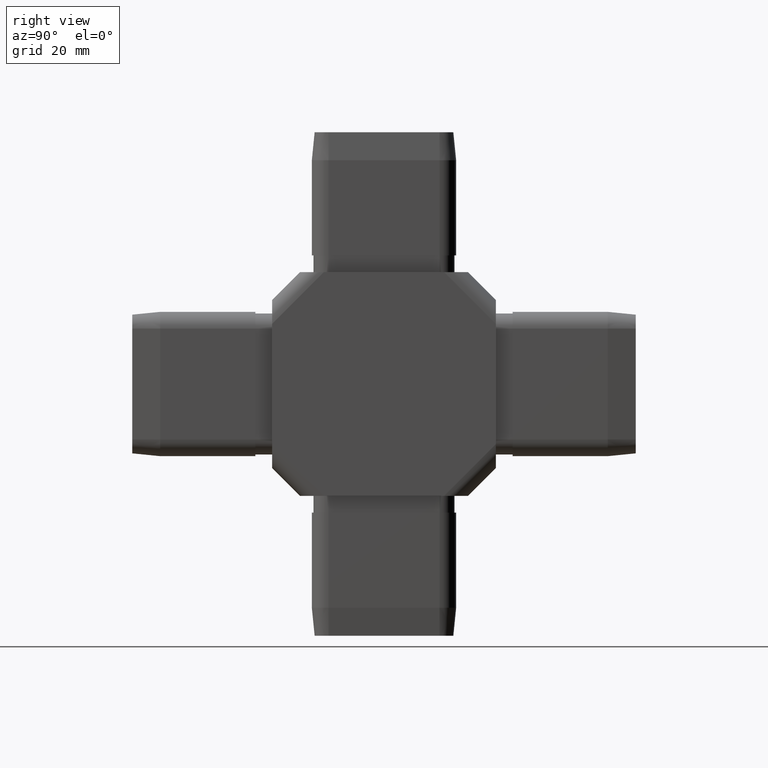
[diagram: clean part render]
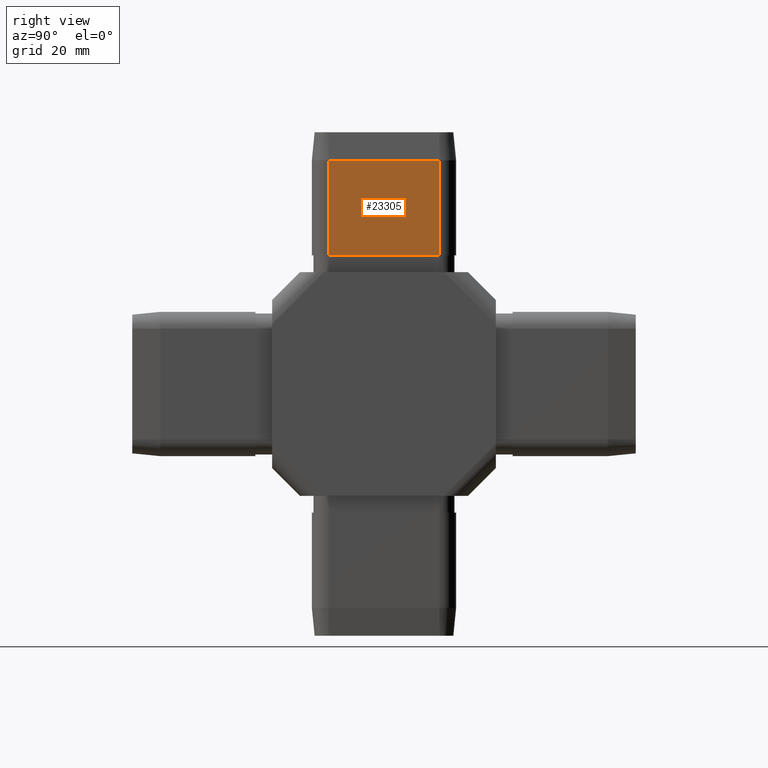
[diagram: same view with one face highlighted and labeled with its STEP entity id]
A machine part, right view. The second image highlights one B-rep face of the part: STEP entity #23305.
In plain terms, the highlighted planar face has unit normal (-1, -0, 0).
Its self-contained STEP definition (entity closure, byte-faithful):
#2554 = FACE_OUTER_BOUND ( 'NONE', #8576, .T. ) ;
#2673 = ORIENTED_EDGE ( 'NONE', *, *, #16186, .T. ) ;
#3925 = VECTOR ( 'NONE', #13305, 1000.000000000000000 ) ;
#5945 = CARTESIAN_POINT ( 'NONE',  ( 12.89999999999999900, 9.899999999999991500, 45.00000000000000000 ) ) ;
#6216 = CARTESIAN_POINT ( 'NONE',  ( 12.90000000000000000, -9.899999999999998600, 39.99999999999997900 ) ) ;
#6232 = VERTEX_POINT ( 'NONE', #25314 ) ;
#6406 = VERTEX_POINT ( 'NONE', #6216 ) ;
#6423 = DIRECTION ( 'NONE',  ( 8.761229676650544600E-017, -1.000000000000000000, 0.0000000000000000000 ) ) ;
#8576 = EDGE_LOOP ( 'NONE', ( #26388, #22698, #2673, #15512 ) ) ;
#8683 = EDGE_CURVE ( 'NONE', #18825, #15968, #15748, .T. ) ;
#12945 = VECTOR ( 'NONE', #22719, 1000.000000000000000 ) ;
#13305 = DIRECTION ( 'NONE',  ( -0.0000000000000000000, -0.0000000000000000000, -1.000000000000000000 ) ) ;
#15512 = ORIENTED_EDGE ( 'NONE', *, *, #33008, .F. ) ;
#15748 = LINE ( 'NONE', #25218, #12945 ) ;
#15968 = VERTEX_POINT ( 'NONE', #16457 ) ;
#16186 = EDGE_CURVE ( 'NONE', #6406, #6232, #24527, .T. ) ;
#16216 = DIRECTION ( 'NONE',  ( -1.000000000000000000, -8.761229676650544600E-017, 0.0000000000000000000 ) ) ;
#16457 = CARTESIAN_POINT ( 'NONE',  ( 12.89999999999999700, 9.899999999999991500, 23.00000000000000000 ) ) ;
#18825 = VERTEX_POINT ( 'NONE', #25095 ) ;
#20153 = LINE ( 'NONE', #33187, #22974 ) ;
#21562 = CARTESIAN_POINT ( 'NONE',  ( 12.90000000000000000, -9.899999999999998600, 45.00000000000000000 ) ) ;
#22246 = VECTOR ( 'NONE', #6423, 1000.000000000000000 ) ;
#22515 = AXIS2_PLACEMENT_3D ( 'NONE', #5945, #16216, #28969 ) ;
#22698 = ORIENTED_EDGE ( 'NONE', *, *, #28704, .T. ) ;
#22719 = DIRECTION ( 'NONE',  ( -0.0000000000000000000, -0.0000000000000000000, -1.000000000000000000 ) ) ;
#22974 = VECTOR ( 'NONE', #23054, 1000.000000000000000 ) ;
#23054 = DIRECTION ( 'NONE',  ( 8.761229676650544600E-017, -1.000000000000000000, 0.0000000000000000000 ) ) ;
#23305 = ADVANCED_FACE ( 'NONE', ( #2554 ), #31888, .F. ) ;
#24527 = LINE ( 'NONE', #21562, #3925 ) ;
#25095 = CARTESIAN_POINT ( 'NONE',  ( 12.89999999999999700, 9.899999999999991500, 40.00000000000000000 ) ) ;
#25218 = CARTESIAN_POINT ( 'NONE',  ( 12.89999999999999900, 9.899999999999991500, 45.00000000000000000 ) ) ;
#25314 = CARTESIAN_POINT ( 'NONE',  ( 12.89999999999999900, -9.899999999999998600, 23.00000000000000000 ) ) ;
#26388 = ORIENTED_EDGE ( 'NONE', *, *, #8683, .F. ) ;
#28704 = EDGE_CURVE ( 'NONE', #18825, #6406, #20153, .T. ) ;
#28969 = DIRECTION ( 'NONE',  ( 8.761229676650544600E-017, -1.000000000000000000, 0.0000000000000000000 ) ) ;
#29120 = LINE ( 'NONE', #29660, #22246 ) ;
#29660 = CARTESIAN_POINT ( 'NONE',  ( 12.89999999999999700, 9.899999999999991500, 23.00000000000000000 ) ) ;
#31888 = PLANE ( 'NONE',  #22515 ) ;
#33008 = EDGE_CURVE ( 'NONE', #15968, #6232, #29120, .T. ) ;
#33187 = CARTESIAN_POINT ( 'NONE',  ( 12.89999999999999700, 9.899999999999991500, 40.00000000000000000 ) ) ;